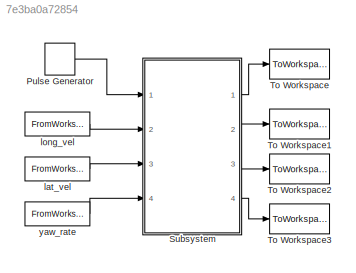
MODEL slx_7e3ba0a72854
KIND model
CONFIG AbsTol = auto
CONFIG FixedStep = auto
CONFIG MaxStep = auto
CONFIG MinStep = auto
CONFIG RelTol = 1e-3
CONFIG SampleTimeConstraint = Unconstrained
CONFIG Solver = ode3
CONFIG SolverMode = Auto
CONFIG SolverName = ode3
CONFIG StartTime = 0
CONFIG StopTime = 5
BLOCK [DiscretePulseGenerator] Pulse Generator
  Amplitude = 0
  Period = 8
  PhaseDelay = 3
  Ports = [0, 1]
  PulseType = Time based
  PulseWidth = 5
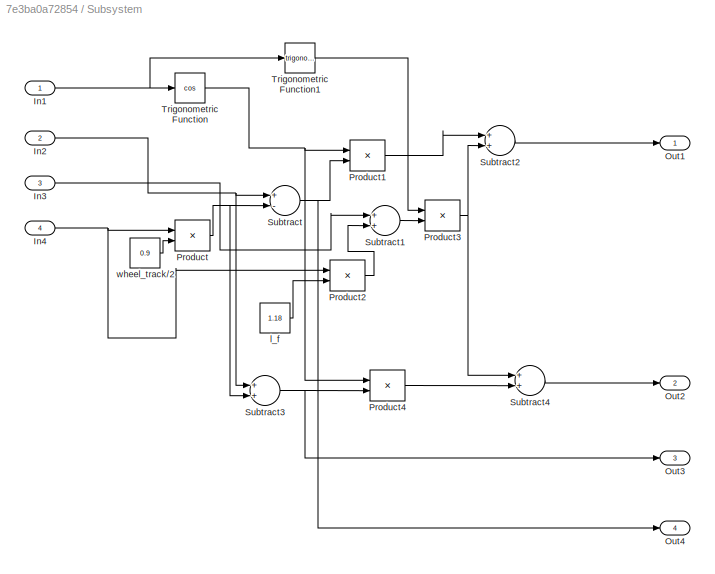
BLOCK [SubSystem] Subsystem
  Ports = [4, 4]
  RequestExecContextInheritance = off
BLOCK [Inport] Subsystem/In1
  IconDisplay = Port number
BLOCK [Inport] Subsystem/In2
  IconDisplay = Port number
  Port = 2
BLOCK [Inport] Subsystem/In3
  IconDisplay = Port number
  Port = 3
BLOCK [Inport] Subsystem/In4
  IconDisplay = Port number
  Port = 4
BLOCK [Outport] Subsystem/Out1
  IconDisplay = Port number
BLOCK [Outport] Subsystem/Out2
  IconDisplay = Port number
  Port = 2
BLOCK [Outport] Subsystem/Out3
  IconDisplay = Port number
  Port = 3
BLOCK [Outport] Subsystem/Out4
  IconDisplay = Port number
  Port = 4
BLOCK [Product] Subsystem/Product
  InputSameDT = off
  OutDataTypeStr = Inherit: Inherit via internal rule
  Ports = [2, 1]
  RndMeth = Floor
  SaturateOnIntegerOverflow = off
BLOCK [Product] Subsystem/Product1
  InputSameDT = off
  OutDataTypeStr = Inherit: Inherit via internal rule
  Ports = [2, 1]
  RndMeth = Floor
  SaturateOnIntegerOverflow = off
BLOCK [Product] Subsystem/Product2
  InputSameDT = off
  OutDataTypeStr = Inherit: Inherit via internal rule
  Ports = [2, 1]
  RndMeth = Floor
  SaturateOnIntegerOverflow = off
BLOCK [Product] Subsystem/Product3
  InputSameDT = off
  OutDataTypeStr = Inherit: Inherit via internal rule
  Ports = [2, 1]
  RndMeth = Floor
  SaturateOnIntegerOverflow = off
BLOCK [Product] Subsystem/Product4
  InputSameDT = off
  OutDataTypeStr = Inherit: Inherit via internal rule
  Ports = [2, 1]
  RndMeth = Floor
  SaturateOnIntegerOverflow = off
BLOCK [Sum] Subsystem/Subtract
  InputSameDT = off
  Inputs = +-
  OutDataTypeStr = Inherit: Inherit via internal rule
  Ports = [2, 1]
  SaturateOnIntegerOverflow = off
BLOCK [Sum] Subsystem/Subtract1
  InputSameDT = off
  OutDataTypeStr = Inherit: Inherit via internal rule
  Ports = [2, 1]
  SaturateOnIntegerOverflow = off
BLOCK [Sum] Subsystem/Subtract2
  InputSameDT = off
  OutDataTypeStr = Inherit: Inherit via internal rule
  Ports = [2, 1]
  SaturateOnIntegerOverflow = off
BLOCK [Sum] Subsystem/Subtract3
  InputSameDT = off
  OutDataTypeStr = Inherit: Inherit via internal rule
  Ports = [2, 1]
  SaturateOnIntegerOverflow = off
BLOCK [Sum] Subsystem/Subtract4
  InputSameDT = off
  OutDataTypeStr = Inherit: Inherit via internal rule
  Ports = [2, 1]
  SaturateOnIntegerOverflow = off
BLOCK [Trigonometry] Subsystem/Trigonometric Function
  Operator = cos
  Ports = [1, 1]
BLOCK [Trigonometry] Subsystem/Trigonometric Function1
  Ports = [1, 1]
BLOCK [Constant] Subsystem/l_f
  Value = 1.18
BLOCK [Constant] Subsystem/wheel_track//2
  Value = 0.9
BLOCK [ToWorkspace] To Workspace
  FixptAsFi = on
  MaxDataPoints = inf
  Ports = [1]
  Save2DSignal = 3-D array (concatenate along third dimension)
  SaveFormat = Timeseries
  VariableName = wheel_vel_fl
BLOCK [ToWorkspace] To Workspace1
  FixptAsFi = on
  MaxDataPoints = inf
  Ports = [1]
  Save2DSignal = 3-D array (concatenate along third dimension)
  SaveFormat = Timeseries
  VariableName = wheel_vel_fr
BLOCK [ToWorkspace] To Workspace2
  FixptAsFi = on
  MaxDataPoints = inf
  Ports = [1]
  Save2DSignal = 3-D array (concatenate along third dimension)
  SaveFormat = Timeseries
  VariableName = wheel_vel_rl
BLOCK [ToWorkspace] To Workspace3
  FixptAsFi = on
  MaxDataPoints = inf
  Ports = [1]
  Save2DSignal = 3-D array (concatenate along third dimension)
  SaveFormat = Timeseries
  VariableName = wheel_vel_rr
BLOCK [FromWorkspace] lat_vel
  SampleTime = 0
  VariableName = lat_vel
  ZeroCross = on
BLOCK [FromWorkspace] long_vel
  SampleTime = 0
  VariableName = long_vel
  ZeroCross = on
BLOCK [FromWorkspace] yaw_rate
  SampleTime = 0
  VariableName = yaw_rate
  ZeroCross = on
LINE Pulse Generator:1 -> Subsystem:1
NET Subsystem/In1:1 -> Subsystem/Trigonometric Function1:1, Subsystem/Trigonometric Function:1
NET Subsystem/In2:1 -> Subsystem/Subtract3:1, Subsystem/Subtract:1
LINE Subsystem/In3:1 -> Subsystem/Subtract1:1
NET Subsystem/In4:1 -> Subsystem/Product2:1, Subsystem/Product:1
LINE Subsystem/Product1:1 -> Subsystem/Subtract2:1
LINE Subsystem/Product2:1 -> Subsystem/Subtract1:2
NET Subsystem/Product3:1 -> Subsystem/Subtract2:2, Subsystem/Subtract4:1
LINE Subsystem/Product4:1 -> Subsystem/Subtract4:2
NET Subsystem/Product:1 -> Subsystem/Subtract3:2, Subsystem/Subtract:2
LINE Subsystem/Subtract1:1 -> Subsystem/Product3:2
LINE Subsystem/Subtract2:1 -> Subsystem/Out1:1
NET Subsystem/Subtract3:1 -> Subsystem/Out3:1, Subsystem/Product4:2
LINE Subsystem/Subtract4:1 -> Subsystem/Out2:1
NET Subsystem/Subtract:1 -> Subsystem/Out4:1, Subsystem/Product1:2
LINE Subsystem/Trigonometric Function1:1 -> Subsystem/Product3:1
NET Subsystem/Trigonometric Function:1 -> Subsystem/Product1:1, Subsystem/Product4:1
LINE Subsystem/l_f:1 -> Subsystem/Product2:2
LINE Subsystem/wheel_track//2:1 -> Subsystem/Product:2
LINE Subsystem:1 -> To Workspace:1
LINE Subsystem:2 -> To Workspace1:1
LINE Subsystem:3 -> To Workspace2:1
LINE Subsystem:4 -> To Workspace3:1
LINE lat_vel:1 -> Subsystem:3
LINE long_vel:1 -> Subsystem:2
LINE yaw_rate:1 -> Subsystem:4
note: NET lines group one-source signal fan-out (src -> all destinations, sorted); 1:1 wires keep LINE
